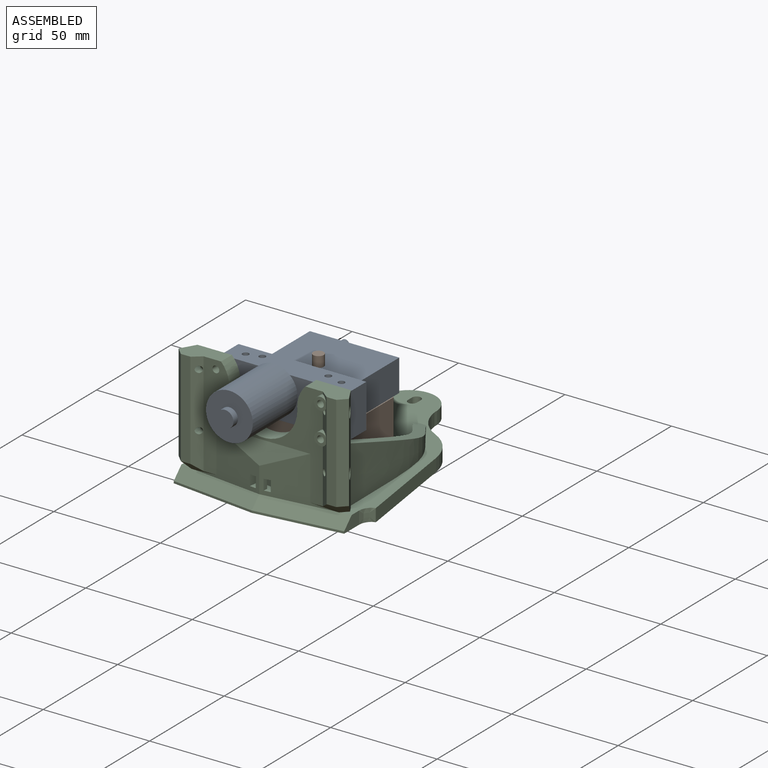
[diagram: assembled view]
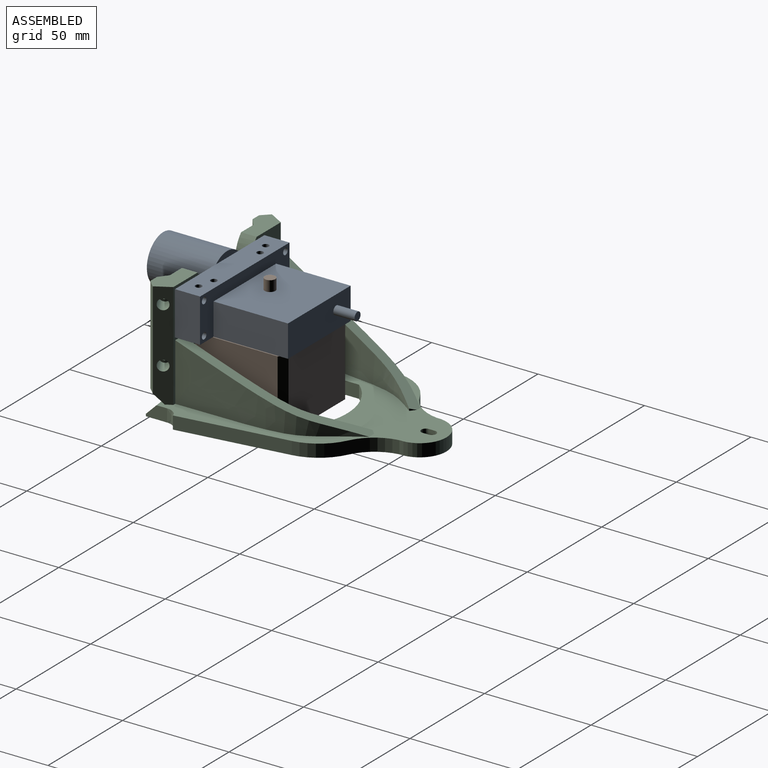
[diagram: assembled view, second angle]
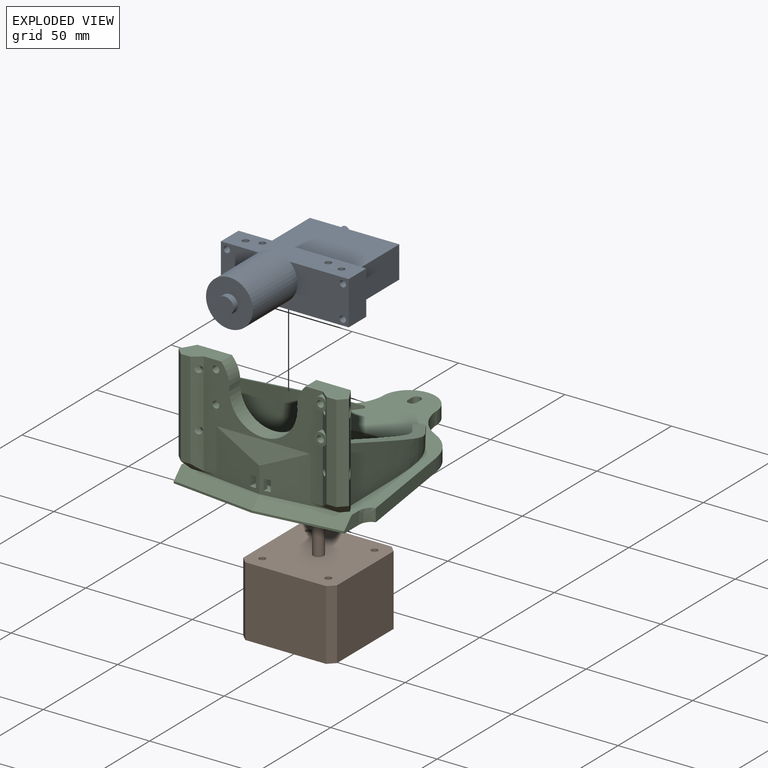
[diagram: exploded view]
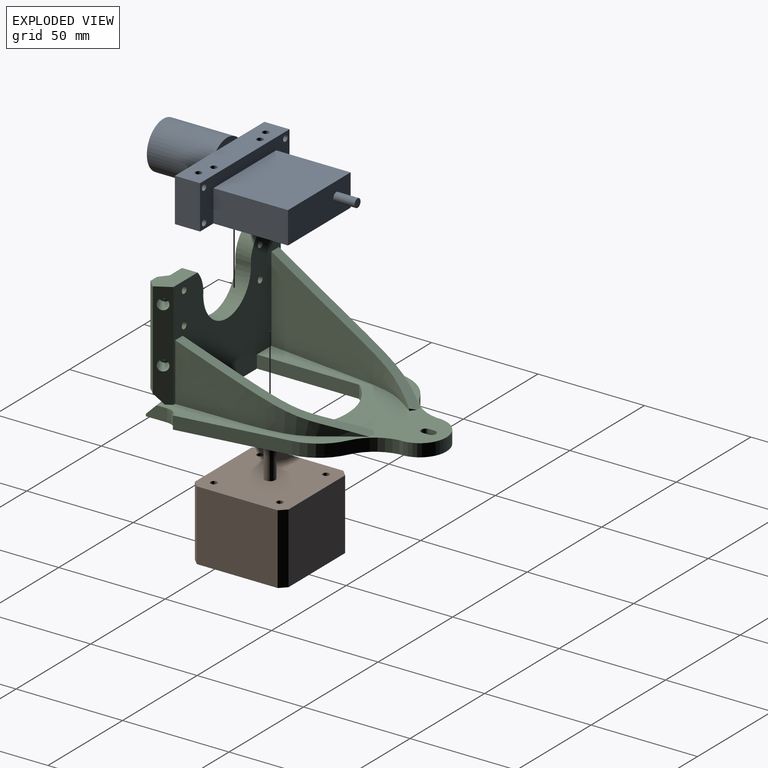
[diagram: exploded view, second angle]
ASSEMBLY  parts=3 mates=2
PART A: 25 faces, bbox 60x89.8x23.3 mm
  f0: plane 20.5x11.8mm, normal (1,0,0), area 241.9mm2, adj f1,f7,f8,f9
  f1: plane 60x20.5mm, normal (0,1,0), area 571.7mm2, adj f0,f2,f8,f9,f10,f11,f12,f13
  f2: plane 20.5x11.8mm, normal (-1,0,0), area 241.9mm2, adj f1,f7,f8,f9
  f3: cylinder r=1.5mm len=20.5mm, axis (0,0,-1), area 193.2mm2, adj f8,f9
  f4: cylinder r=1.5mm len=20.5mm, axis (0,0,-1), area 193.2mm2, adj f8,f9
  f5: cylinder r=1.5mm len=20.5mm, axis (0,0,-1), area 193.2mm2, adj f8,f9
  f6: cylinder r=1.5mm len=20.5mm, axis (0,0,-1), area 193.2mm2, adj f8,f9
  f7: plane 60x20.5mm, normal (0,-1,0), area 850.3mm2, adj f0,f2,f8,f9,f10,f11,f12,f13
  f8: plane 60x11.8mm, normal (0,0,1), area 679.7mm2, adj f0,f1,f2,f3,f4,f5,f6,f7
  f9: plane 60x46.8mm, normal (0,0,-1), area 2149.7mm2, adj f0,f1,f2,f3,f4,f5,f6,f7
  f10: cylinder r=1.5mm len=11.8mm, axis (0,1,0), area 111.2mm2, adj f1,f7
  f11: cylinder r=1.5mm len=11.8mm, axis (0,1,0), area 111.2mm2, adj f1,f7
  f12: cylinder r=1.5mm len=11.8mm, axis (0,1,0), area 111.2mm2, adj f1,f7
  f13: cylinder r=1.5mm len=11.8mm, axis (0,1,0), area 111.2mm2, adj f1,f7
  f14: plane 14.75x2.84mm, normal (0,1,0), area 28.7mm2, adj f8,f15
  f15: cylinder r=11mm len=30mm, axis (0,1,0), area 2073.5mm2, adj f7,f14,f16
  f16: plane 22x22mm, normal (0,-1,0), area 329.9mm2, adj f15,f17
  f17: cylinder r=4mm len=8mm, axis (0,1,0), area 75.4mm2, adj f16,f18
  f18: plane 8x8mm, normal (0,-1,0), area 50.3mm2, adj f17
  f19: plane 35x15mm, normal (1,0,0), area 525mm2, adj f1,f9,f21,f22
  f20: plane 35x15mm, normal (-1,0,0), area 525mm2, adj f1,f9,f21,f22
  f21: plane 42x35mm, normal (0,0,1), area 1470mm2, adj f1,f19,f20,f22
  f22: plane 42x15mm, normal (0,1,0), area 617.4mm2, adj f9,f19,f20,f21,f23
  f23: cylinder r=2mm len=10mm, axis (0,-1,0), area 125.7mm2, adj f22,f24
  f24: plane 4x4mm, normal (0,1,0), area 12.6mm2, adj f23
PART B: 20 faces, bbox 44x44x53 mm
  f0: plane 38x33mm, normal (1,0,0), area 1254mm2, adj f4,f5,f10,f11
  f1: plane 38x33mm, normal (0,1,0), area 1254mm2, adj f4,f5,f9,f11
  f2: plane 38x33mm, normal (-1,0,0), area 1254mm2, adj f4,f5,f8,f9
  f3: plane 38x33mm, normal (0,-1,0), area 1254mm2, adj f4,f5,f8,f10
  f4: plane 44x44mm, normal (0,0,1), area 1870.1mm2, adj f0,f1,f2,f3,f6,f8,f9,f10
  f5: plane 44x44mm, normal (0,0,-1), area 1918mm2, adj f0,f1,f2,f3,f8,f9,f10,f11
  f6: cylinder r=2.5mm len=20mm, axis (0,0,-1), area 314.2mm2, adj f4,f7
  f7: plane 5x5mm, normal (0,0,1), area 19.6mm2, adj f6
  f8: plane 33x3mm, normal (-0.71,-0.71,0), area 140mm2, adj f2,f3,f4,f5
  f9: plane 33x3mm, normal (-0.71,0.71,0), area 140mm2, adj f1,f2,f4,f5
  f10: plane 33x3mm, normal (0.71,-0.71,0), area 140mm2, adj f0,f3,f4,f5
  f11: plane 33x3mm, normal (0.71,0.71,0), area 140mm2, adj f0,f1,f4,f5
  f12: cylinder r=1.5mm len=10mm, axis (0,0,1), area 94.2mm2, adj f4,f13
  f13: plane 3x3mm, normal (0,0,1), area 7.1mm2, adj f12
  f14: cylinder r=1.5mm len=10mm, axis (0,0,1), area 94.2mm2, adj f4,f15
  f15: plane 3x3mm, normal (0,0,1), area 7.1mm2, adj f14
  f16: cylinder r=1.5mm len=10mm, axis (0,0,1), area 94.2mm2, adj f4,f17
  f17: plane 3x3mm, normal (0,0,1), area 7.1mm2, adj f16
  f18: cylinder r=1.5mm len=10mm, axis (0,0,1), area 94.2mm2, adj f4,f19
  f19: plane 3x3mm, normal (0,0,1), area 7.1mm2, adj f18
PART C: 84 faces, bbox 88.7x118.7x56.7 mm
  f0: plane 32.81x22mm, normal (0.12,-0.99,0), area 369.7mm2, adj f29,f30,f37,f43,f47,f72,f73,f75
  f1: extruded ~77.41x40mm, area 1610mm2, adj f2,f4,f11,f71
  f2: plane 2.52x1.91mm, normal (0.6,0.8,0), area 1.5mm2, adj f1,f4,f71
  f3: extruded ~79.32x40mm, area 1608.4mm2, adj f4,f11,f71
  f4: plane 108.75x88mm, normal (0,0,1), area 2978mm2, adj f1,f2,f3,f6,f7,f8,f9,f10
  f5: plane 20.17x10.5mm, normal (0,0,1), area 159.1mm2, adj f11,f33,f34,f35,f36,f37,f54
  f6: plane 6x2.8mm, normal (-1,0,0), area 16.8mm2, adj f4,f7,f26,f27
  f7: cylinder r=2.1mm len=6mm, axis (0,0,-1), area 39.6mm2, adj f4,f6,f8,f27
  f8: plane 6x2.8mm, normal (1,0,0), area 16.8mm2, adj f4,f7,f26,f27
  f9: cylinder r=31.33mm len=48mm, axis (0,0,-1), area 328.1mm2, adj f4,f10,f24,f27
  f10: plane 48x6mm, normal (-1,0,0), area 288mm2, adj f4,f9,f11,f27
  f11: plane 72.02x56.02mm, normal (0,1,0), area 2743mm2, adj f1,f3,f4,f5,f10,f24,f27,f33
  f12: plane 10x6mm, normal (-1,0,0), area 47.4mm2, adj f4,f13,f25,f27,f28
  f13: plane 40x4.83mm, normal (-0.12,-0.99,0), area 40.3mm2, adj f12,f14,f27,f28
  f14: plane 40x4.83mm, normal (0.12,-0.99,0), area 40.3mm2, adj f13,f15,f27,f29
  f15: plane 10x6mm, normal (1,0,0), area 47.4mm2, adj f4,f14,f16,f27,f29
  f16: extruded ~6x5.48mm, area 43.9mm2, adj f4,f15,f17,f27
  f17: plane 50.8x7.22mm, normal (0.99,0.14,0), area 307.9mm2, adj f4,f16,f18,f27
  f18: cylinder r=23.08mm len=17.52mm, axis (0,0,-1), area 135.4mm2, adj f4,f17,f19,f27
  f19: cylinder r=20.78mm len=16.02mm, axis (0,0,-1), area 123.4mm2, adj f4,f18,f20,f27
  f20: cylinder r=12.5mm len=25mm, axis (0,0,-1), area 245.8mm2, adj f4,f19,f21,f27
  f21: cylinder r=20.78mm len=16.02mm, axis (0,0,-1), area 123.4mm2, adj f4,f20,f22,f27
  f22: cylinder r=23.08mm len=17.52mm, axis (0,0,-1), area 135.4mm2, adj f4,f21,f23,f27
  f23: plane 50.8x7.22mm, normal (-0.99,0.14,0), area 307.9mm2, adj f4,f22,f25,f27
  f24: plane 48x6mm, normal (1,0,0), area 288mm2, adj f4,f9,f11,f27
  f25: extruded ~6x5.48mm, area 43.9mm2, adj f4,f12,f23,f27
  f26: cylinder r=2.1mm len=6mm, axis (0,0,-1), area 39.6mm2, adj f4,f6,f8,f27
  f27: plane 118x88mm, normal (0,0,-1), area 4772.2mm2, adj f6,f7,f8,f9,f10,f11,f12,f13
  f28: plane 40x9.87mm, normal (-0.08,-0.7,0.71), area 284.9mm2, adj f4,f12,f13,f29,f30,f31
  f29: plane 40x9.87mm, normal (0.08,-0.7,0.71), area 284.9mm2, adj f0,f4,f14,f15,f28,f32
  f30: plane 32.81x22mm, normal (-0.12,-0.99,0), area 370.2mm2, adj f0,f28,f37,f45,f47,f74,f75,f76
  f31: plane 2.04x0.25mm, normal (0,0,-1), area 0.2mm2, adj f28,f45,f46
  f32: plane 2.04x0.25mm, normal (0,0,-1), area 0.2mm2, adj f29,f43,f44
  f33: plane 50x6.93mm, normal (-0.87,0.5,0), area 350.2mm2, adj f4,f5,f11,f34,f46,f57,f60
  f34: plane 45.5x3.57mm, normal (-0.71,-0.7,0), area 227.5mm2, adj f5,f33,f35,f46
  f35: plane 45.5x4.5mm, normal (0,-1,0), area 204.7mm2, adj f5,f34,f36,f45
  f36: plane 48.7x4mm, normal (0.62,-0.78,0), area 226.1mm2, adj f5,f35,f37,f45,f55,f58
  f37: plane 56x48.7mm, normal (0,-1,0), area 1003mm2, adj f0,f5,f30,f36,f38,f42,f43,f45
  f38: plane 49.41x4.71mm, normal (-0.62,-0.78,0), area 182.1mm2, adj f37,f39,f42,f43,f61,f64,f80,f81
  f39: plane 45.5x4.5mm, normal (0,-1,0), area 204.7mm2, adj f38,f40,f42,f43
  f40: plane 45.5x3.57mm, normal (0.71,-0.7,0), area 227.5mm2, adj f39,f41,f42,f44
  f41: plane 50x6.93mm, normal (0.87,0.5,0), area 350.2mm2, adj f4,f11,f40,f42,f44,f63,f66
  f42: plane 20.17x10.5mm, normal (0,0,1), area 159.1mm2, adj f11,f37,f38,f39,f40,f41,f53
  f43: plane 14.46x4.5mm, normal (0,-0.71,-0.71), area 40.1mm2, adj f0,f32,f37,f38,f39,f44
  f44: plane 7.62x5.39mm, normal (0.5,-0.49,-0.71), area 29.8mm2, adj f4,f32,f40,f41,f43
  f45: plane 14.46x4.5mm, normal (0,-0.71,-0.71), area 40.1mm2, adj f30,f31,f35,f36,f37,f46
  f46: plane 7.62x5.39mm, normal (-0.5,-0.49,-0.71), area 29.8mm2, adj f4,f31,f33,f34,f45
  f47: plane 44.09x9.94mm, normal (0,-0.97,0.26), area 226.9mm2, adj f0,f30,f37
  f48: cylinder r=1.6mm len=10mm, axis (0,1,0), area 100.5mm2, adj f11,f82
  f49: cylinder r=1.6mm len=10mm, axis (0,1,0), area 100.5mm2, adj f11,f81
  f50: cylinder r=1.6mm len=7.3mm, axis (0,1,0), area 73.4mm2, adj f11,f37
  f51: cylinder r=1.6mm len=7.3mm, axis (0,1,0), area 73.4mm2, adj f11,f37
  f52: cylinder r=16mm len=32mm, axis (0,1,0), area 390.3mm2, adj f11,f37,f53,f54
  f53: cylinder r=14mm len=9.4mm, axis (0,1,0), area 76.1mm2, adj f11,f37,f42,f52
  f54: cylinder r=14mm len=9.4mm, axis (0,1,0), area 76.1mm2, adj f5,f11,f37,f52
  f55: cylinder r=1.5mm len=3.86mm, axis (-0.87,0.5,0), area 18.1mm2, adj f36,f56
  f56: plane 5x4.33mm, normal (-0.87,0.5,0), area 12.6mm2, adj f55,f57
  f57: cylinder r=2.5mm len=9.43mm, axis (-0.87,0.5,0), area 125.7mm2, adj f33,f56
  f58: cylinder r=1.5mm len=3.86mm, axis (-0.87,0.5,0), area 18.1mm2, adj f36,f59
  f59: plane 5x4.33mm, normal (-0.87,0.5,0), area 12.6mm2, adj f58,f60
  f60: cylinder r=2.5mm len=9.43mm, axis (-0.87,0.5,0), area 125.7mm2, adj f33,f59
  f61: cylinder r=1.5mm len=3.83mm, axis (0.87,0.5,0), area 13.8mm2, adj f38,f62,f83
  f62: plane 4.96x4.45mm, normal (0.87,0.5,0), area 9.9mm2, adj f61,f63,f83
  f63: cylinder r=2.5mm len=9.43mm, axis (0.87,0.5,0), area 122.5mm2, adj f41,f62,f83
  f64: cylinder r=1.5mm len=3.85mm, axis (0.87,0.5,0), area 18.1mm2, adj f38,f65
  f65: plane 5x4.33mm, normal (0.87,0.5,0), area 12.6mm2, adj f64,f66
  f66: cylinder r=2.5mm len=9.43mm, axis (0.87,0.5,0), area 125.7mm2, adj f41,f65
  f67: extruded ~76.59x27mm, area 1079mm2, adj f4,f11,f69,f70
  f68: extruded ~78.32x27mm, area 1076.6mm2, adj f4,f11,f70
  f69: plane 1.73x1.58mm, normal (-0.74,0.67,0), area 0.7mm2, adj f4,f67,f70
  f70: plane 78.32x27mm, normal (0,0.33,0.95), area 437.4mm2, adj f4,f11,f67,f68,f69
  f71: plane 79.32x40mm, normal (0,0.45,0.89), area 459.9mm2, adj f1,f2,f3,f4,f11
  f72: plane 5x3.79mm, normal (-0.99,0.12,0), area 19.1mm2, adj f0,f75,f77,f78
  f73: plane 5x2.04mm, normal (0.99,-0.12,0), area 10.3mm2, adj f0,f75,f77,f79
  f74: plane 5x4.96mm, normal (0.99,-0.12,0), area 25mm2, adj f30,f75,f77,f78
  f75: plane 10.2x5.32mm, normal (0,0,1), area 36.7mm2, adj f0,f30,f72,f73,f74,f76,f78,f79
  f76: plane 5x2.48mm, normal (-0.99,0.12,0), area 12.5mm2, adj f30,f75,f77,f79
  f77: plane 10.2x5.32mm, normal (0,0,-1), area 36.7mm2, adj f0,f30,f72,f73,f74,f76,f78,f79
  f78: plane 9.6x5mm, normal (-0.12,-0.99,0), area 48.3mm2, adj f72,f74,f75,f77
  f79: plane 5x3.64mm, normal (0.12,0.99,0), area 18.3mm2, adj f73,f75,f76,f77
  f80: cylinder r=3mm len=6mm, axis (0,1,0), area 32mm2, adj f37,f38,f81
  f81: plane 6x5.63mm, normal (0,-1,0), area 19.5mm2, adj f38,f49,f80
  f82: plane 6x5.63mm, normal (0,-1,0), area 19.5mm2, adj f38,f48,f83
  f83: cylinder r=3mm len=6mm, axis (0,1,0), area 39.8mm2, adj f37,f38,f61,f62,f63,f82
PLACE A t=(0.05,-3.48,-11.68)mm
PLACE B t=(-0.45,13.92,-44.68)mm fixed
PLACE C t=(-4.95,-4.06,-45.93)mm
MATE fastened A.f10 <-> C.f51  axis (0,-1,0) through (-27.2,-9.38,6.07)mm
MATE fastened B.f16 <-> A.f6  axis (0,0,1) through (15.05,-1.58,-11.68)mm
